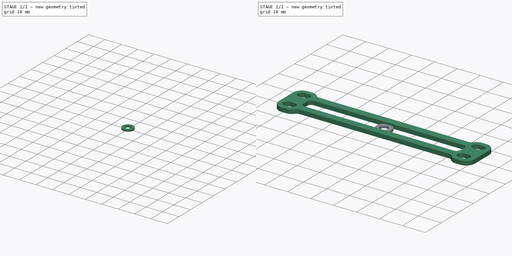
[diagram: build sequence overview — one tinted view per stage of 2, left to right]
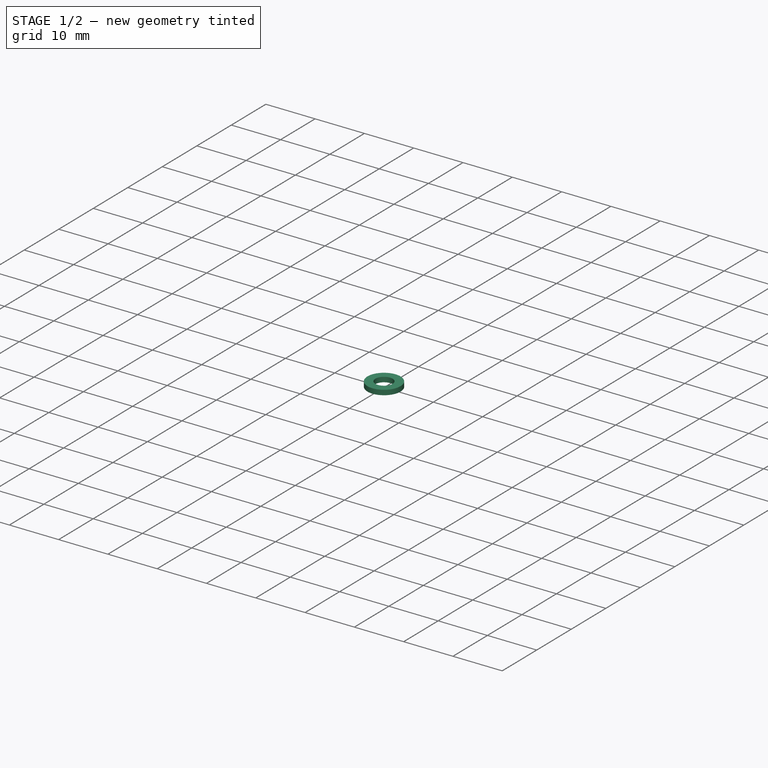
[diagram: stage 1 of 2 — iso view after this stage's code; geometry added in this stage tinted green]
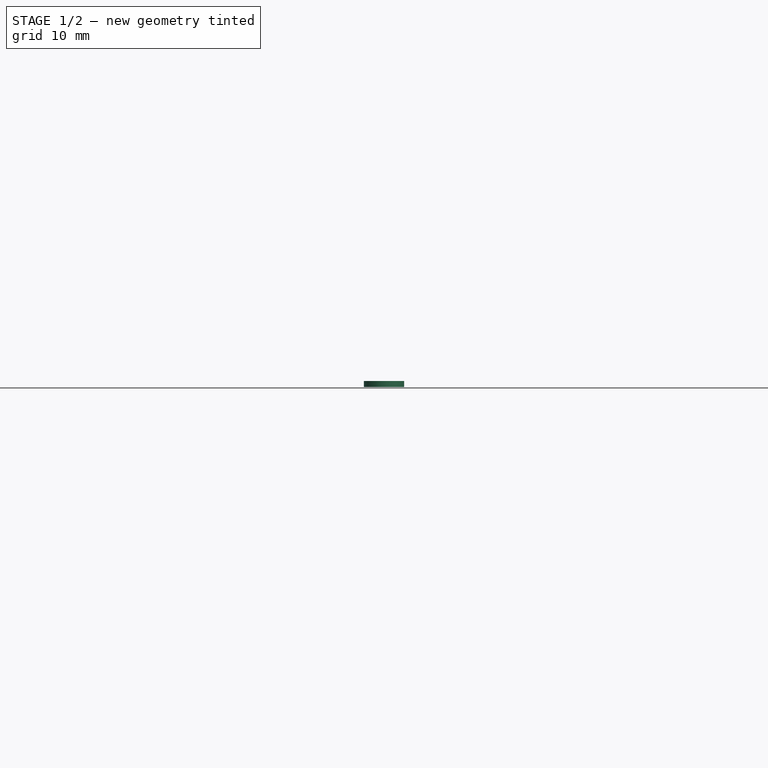
[diagram: stage 1 of 2 — front view after this stage's code; geometry added in this stage tinted green]
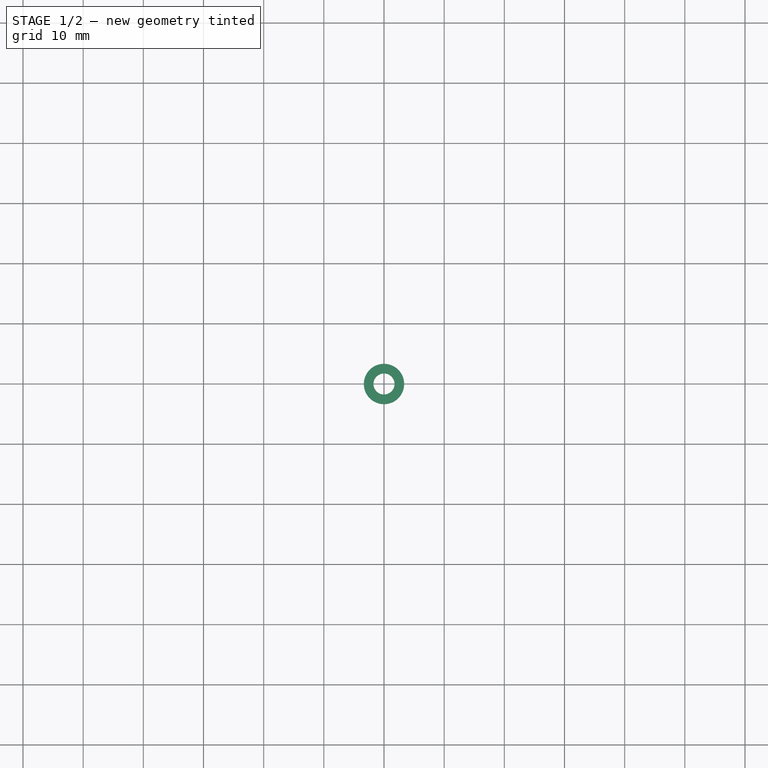
[diagram: stage 1 of 2 — top view after this stage's code; geometry added in this stage tinted green]
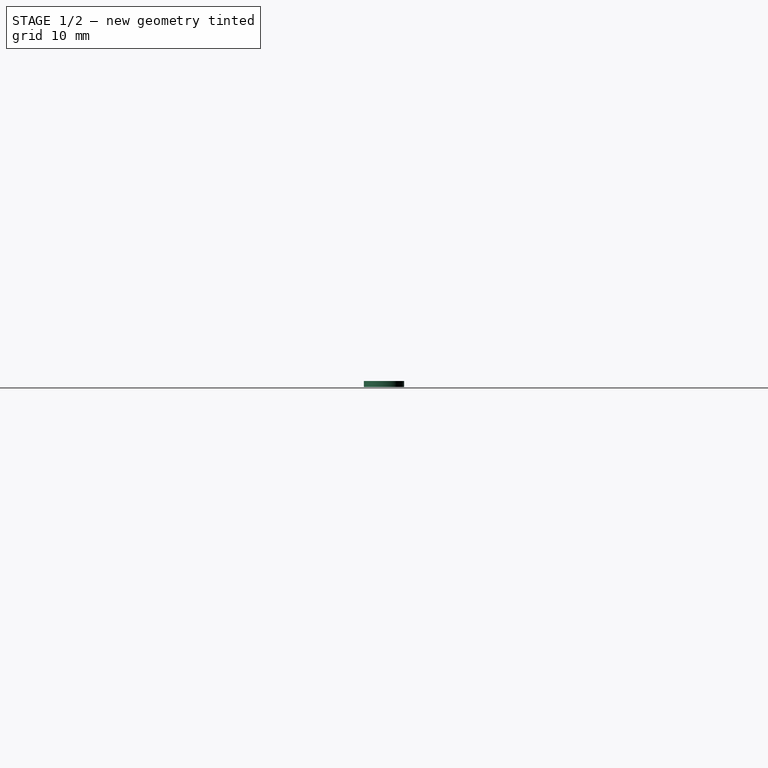
[diagram: stage 1 of 2 — right view after this stage's code; geometry added in this stage tinted green]
FCSTD DOCUMENT  (FreeCAD 0.22R33992 (Git))
Label: GimliHddPlate
License: All rights reserved
LicenseURL: http://en.wikipedia.org/wiki/All_rights_reserved
objects: Sketcher::SketchObject×3, PartDesign::Body×3, PartDesign::Pad×2
note: 10 computed .brp shape members not serialized (recipe doc carries the construction recipe); baked Part::Feature solids carry a one-line shape summary decoded from their .brp

FEATURE [PartDesign::Body] Body001  label="SSDJoiner"
  Group = -> [Sketch001,Pad]
  Origin = -> Origin001
  Tip = -> Pad
FEATURE [Sketcher::SketchObject] Sketch002
  FullyConstrained = true
  MapMode = 5
  Support = -> [XY_Plane002]
  expr: Constraints[3] = .Constraints.R1 + 1.6 mm
  sketch-geometry (2):
    g0: Circle CenterX=0 CenterY=0 CenterZ=0 NormalX=0 NormalY=0 NormalZ=1 AngleXU=0 Radius=1.75
    g1: Circle CenterX=0 CenterY=0 CenterZ=0 NormalX=0 NormalY=0 NormalZ=1 AngleXU=0 Radius=3.35
  constraints (4):
    c: Coincident(g0,g-1)
    c: Radius(g0) = 1.75  'R1'
    c: Coincident(g1,g0)
    c: Radius(g1) = 3.35
FEATURE [PartDesign::Pad] Pad001
  Direction = (0,0,1)
  Length = 1
  Length2 = 10
  Profile = -> Sketch002
  ReferenceAxis = -> Sketch002 [N_Axis]
  Type = 0
FEATURE [PartDesign::Body] Body002  label="Washer"
  Group = -> [Sketch002,Pad001]
  Origin = -> Origin002
  Tip = -> Pad001
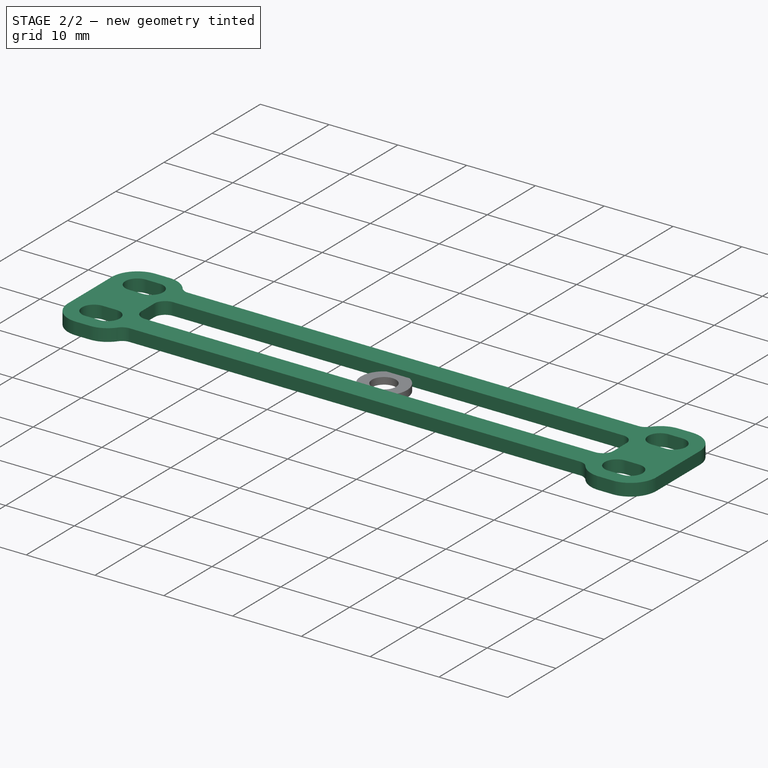
[diagram: stage 2 of 2 — iso view after this stage's code; geometry added in this stage tinted green]
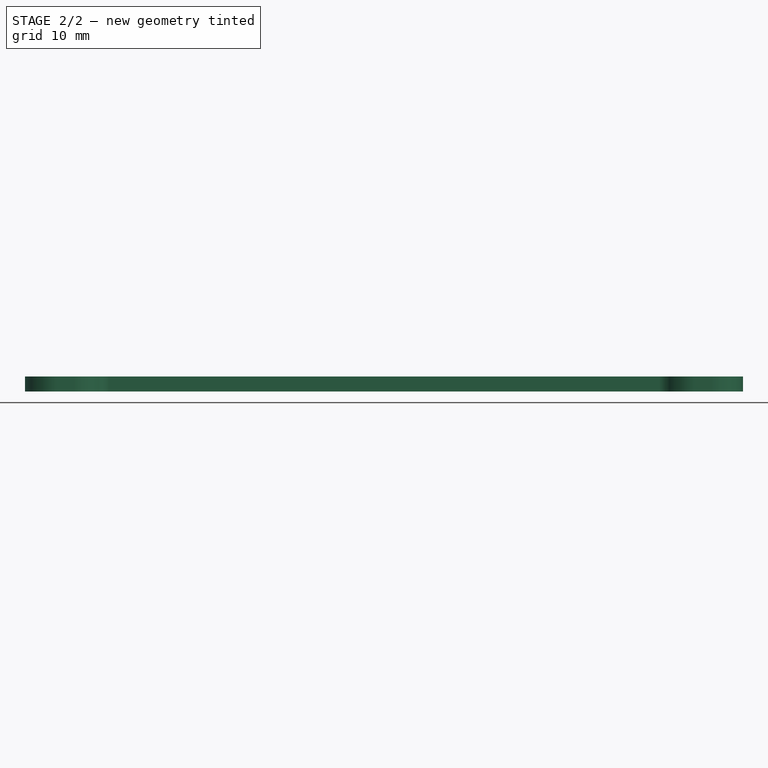
[diagram: stage 2 of 2 — front view after this stage's code; geometry added in this stage tinted green]
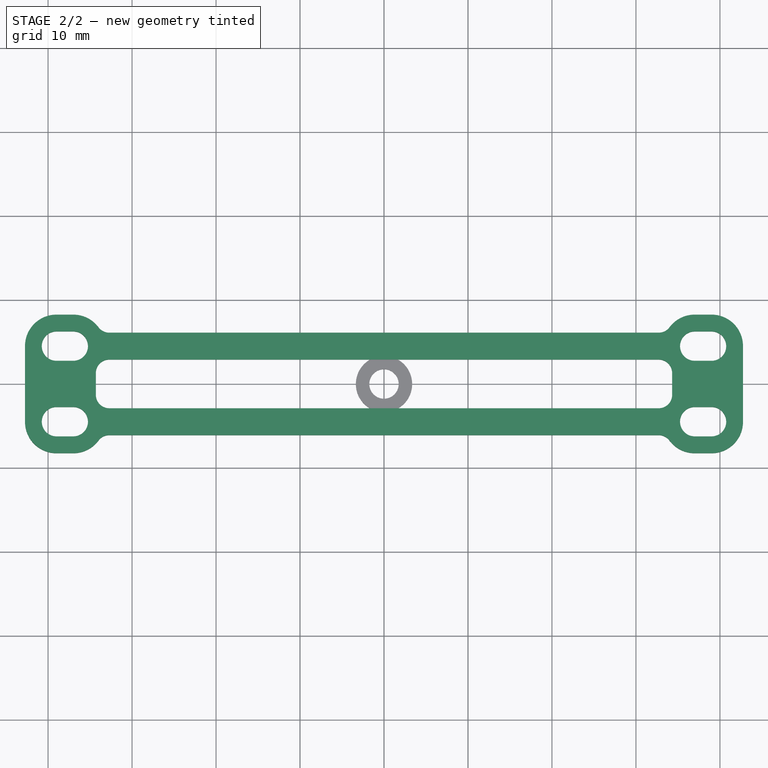
[diagram: stage 2 of 2 — top view after this stage's code; geometry added in this stage tinted green]
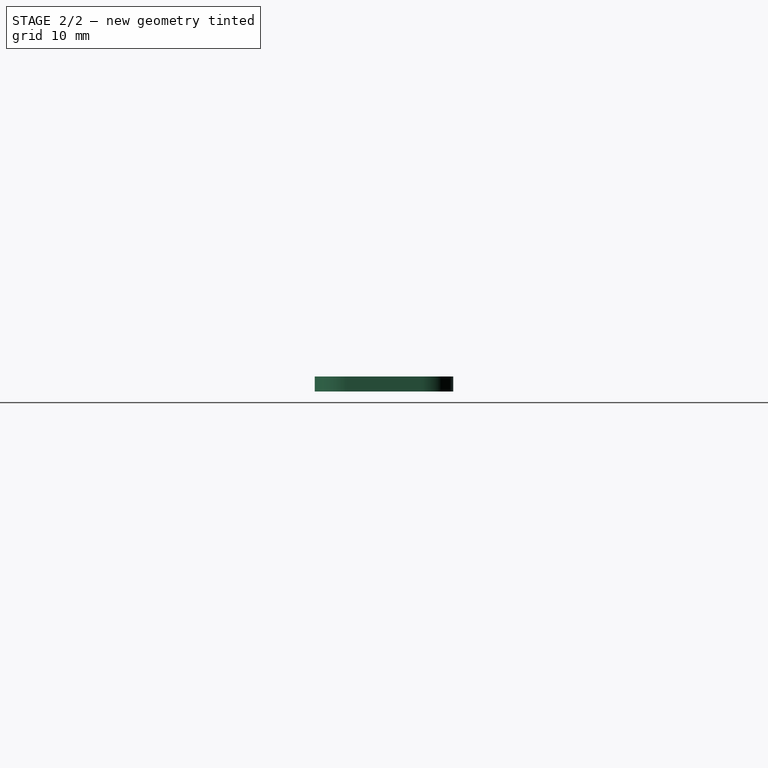
[diagram: stage 2 of 2 — right view after this stage's code; geometry added in this stage tinted green]
FEATURE [Sketcher::SketchObject] Sketch
  FullyConstrained = false
  MapMode = 5
  Support = -> [XY_Plane]
  sketch-geometry (7):
    g0: LineSegment StartX=35.7178 StartY=71.0694 StartZ=0 EndX=172.718 EndY=71.0694 EndZ=0
    g1: LineSegment StartX=172.718 StartY=71.0694 StartZ=0 EndX=172.718 EndY=-54.9306 EndZ=0
    g2: LineSegment StartX=172.718 StartY=-54.9306 StartZ=0 EndX=67.7178 EndY=-54.9306 EndZ=0
    g3: LineSegment StartX=67.7178 StartY=-54.9306 StartZ=0 EndX=67.7178 EndY=43.0694 EndZ=0
    g4: LineSegment StartX=67.7178 StartY=43.0694 StartZ=0 EndX=35.7178 EndY=43.0694 EndZ=0
    g5: LineSegment StartX=35.7178 StartY=43.0694 StartZ=0 EndX=35.7178 EndY=71.0694 EndZ=0
    g6: Circle CenterX=40.9178 CenterY=58.0694 CenterZ=0 NormalX=0 NormalY=0 NormalZ=1 AngleXU=0 Radius=2.2
  constraints (20):
    c: Horizontal(g0)
    c: DistanceX(g0,g0) = 137
    c: Coincident(g1,g0)
    c: Vertical(g1)
    c: DistanceY(g1,g1) = 126
    c: Coincident(g2,g1)
    c: Horizontal(g2)
    c: Coincident(g3,g2)
    c: Vertical(g3)
    c: Coincident(g4,g3)
    c: Horizontal(g4)
    c: Coincident(g5,g4)
    c: Coincident(g5,g0)
    c: Vertical(g5)
    c: DistanceX(g2,g2) = 105
    c: DistanceY(g5,g5) = 28
    c: DistanceX(g4,g4) = 32
    c: DistanceY(g6,g0) = 13
    c: Radius(g6) = 2.2
    c: DistanceX(g0,g6) = 5.2
FEATURE [PartDesign::Body] Body  label="Plate"
  Group = -> [Sketch]
  Origin = -> Origin
FEATURE [Sketcher::SketchObject] Sketch001
  FullyConstrained = true
  MapMode = 5
  Support = -> [XY_Plane001]
  expr: Constraints[91] = .Constraints.Rh + 2 mm
  sketch-geometry (51):
    g0: LineSegment StartX=-38 StartY=4.5 StartZ=0 EndX=38 EndY=4.5 EndZ=0
    g1: LineSegment StartX=38 StartY=4.5 StartZ=0 EndX=38 EndY=-4.5 EndZ=0
    g2: ArcOfCircle CenterX=-32.7125 CenterY=-7.7 CenterZ=0 NormalX=0 NormalY=0 NormalZ=1 AngleXU=0 Radius=1.6 StartAngle=1.5708 EndAngle=2.50043
    g3: ArcOfCircle CenterX=32.7125 CenterY=-7.7 CenterZ=0 NormalX=0 NormalY=0 NormalZ=1 AngleXU=0 Radius=1.6 StartAngle=0.641167 EndAngle=1.5708
    g4: LineSegment StartX=-32.7125 StartY=-6.1 StartZ=0 EndX=32.7125 EndY=-6.1 EndZ=0
    g5: LineSegment StartX=-32.7125 StartY=-2.9 StartZ=0 EndX=32.7125 EndY=-2.9 EndZ=0
    g6: LineSegment StartX=-32.7125 StartY=-2.9 StartZ=0 EndX=-32.7125 EndY=-6.1 EndZ=0
    g7: LineSegment StartX=-42.75 StartY=4.5 StartZ=0 EndX=-42.75 EndY=-4.5 EndZ=0
    g8: LineSegment StartX=-38 StartY=-4.5 StartZ=0 EndX=-38 EndY=4.5 EndZ=0
    g9: LineSegment StartX=38 StartY=-4.5 StartZ=0 EndX=-38 EndY=-4.5 EndZ=0
    g10: ArcOfCircle CenterX=-32.7125 CenterY=-1.3 CenterZ=0 NormalX=0 NormalY=0 NormalZ=1 AngleXU=0 Radius=1.6 StartAngle=3.14159 EndAngle=4.71239
    g11: LineSegment StartX=-32.7125 StartY=6.1 StartZ=0 EndX=32.7125 EndY=6.1 EndZ=0
    g12: LineSegment StartX=-32.7125 StartY=2.9 StartZ=0 EndX=32.7125 EndY=2.9 EndZ=0
    g13: LineSegment StartX=-32.7125 StartY=6.1 StartZ=0 EndX=-32.7125 EndY=2.9 EndZ=0
    g14: ArcOfCircle CenterX=-32.7125 CenterY=7.7 CenterZ=0 NormalX=0 NormalY=0 NormalZ=1 AngleXU=0 Radius=1.6 StartAngle=3.78276 EndAngle=4.71239
    g15: ArcOfCircle CenterX=-32.7125 CenterY=1.3 CenterZ=0 NormalX=0 NormalY=0 NormalZ=1 AngleXU=0 Radius=1.6 StartAngle=1.5708 EndAngle=3.14159
    g16: ArcOfCircle CenterX=32.7125 CenterY=7.7 CenterZ=0 NormalX=0 NormalY=0 NormalZ=1 AngleXU=0 Radius=1.6 StartAngle=4.71239 EndAngle=5.64202
    g17: ArcOfCircle CenterX=32.7125 CenterY=1.3 CenterZ=0 NormalX=0 NormalY=0 NormalZ=1 AngleXU=0 Radius=1.6 StartAngle=0 EndAngle=1.5708
    g18: ArcOfCircle CenterX=32.7125 CenterY=-1.3 CenterZ=0 NormalX=0 NormalY=0 NormalZ=1 AngleXU=0 Radius=1.6 StartAngle=4.71239 EndAngle=6.28319
    g19: LineSegment StartX=34.3125 StartY=1.3 StartZ=0 EndX=34.3125 EndY=-1.3 EndZ=0
    g20: LineSegment StartX=42.75 StartY=4.5 StartZ=0 EndX=42.75 EndY=-4.5 EndZ=0
    g21: LineSegment StartX=-34.3125 StartY=1.3 StartZ=0 EndX=-34.3125 EndY=-1.3 EndZ=0
    g22: LineSegment StartX=32.7125 StartY=6.1 StartZ=0 EndX=32.7125 EndY=2.9 EndZ=0
    g23: ArcOfCircle CenterX=-39 CenterY=-4.5 CenterZ=0 NormalX=0 NormalY=0 NormalZ=1 AngleXU=0 Radius=1.75 StartAngle=1.5708 EndAngle=4.71239
    g24: ArcOfCircle CenterX=-37 CenterY=-4.5 CenterZ=0 NormalX=0 NormalY=0 NormalZ=1 AngleXU=0 Radius=1.75 StartAngle=4.71239 EndAngle=7.85398
    g25: LineSegment StartX=-39 StartY=-6.25 StartZ=0 EndX=-37 EndY=-6.25 EndZ=0
    g26: LineSegment StartX=-37 StartY=-2.75 StartZ=0 EndX=-39 EndY=-2.75 EndZ=0
    g27: ArcOfCircle CenterX=-39 CenterY=4.5 CenterZ=0 NormalX=0 NormalY=0 NormalZ=1 AngleXU=0 Radius=1.75 StartAngle=1.5708 EndAngle=4.71239
    g28: ArcOfCircle CenterX=-37 CenterY=4.5 CenterZ=0 NormalX=0 NormalY=0 NormalZ=1 AngleXU=0 Radius=1.75 StartAngle=4.71239 EndAngle=7.85398
    g29: LineSegment StartX=-39 StartY=2.75 StartZ=0 EndX=-37 EndY=2.75 EndZ=0
    g30: LineSegment StartX=-37 StartY=6.25 StartZ=0 EndX=-39 EndY=6.25 EndZ=0
    g31: ArcOfCircle CenterX=37 CenterY=4.5 CenterZ=0 NormalX=0 NormalY=0 NormalZ=1 AngleXU=0 Radius=1.75 StartAngle=1.5708 EndAngle=4.71239
    g32: ArcOfCircle CenterX=39 CenterY=4.5 CenterZ=0 NormalX=0 NormalY=0 NormalZ=1 AngleXU=0 Radius=1.75 StartAngle=4.71239 EndAngle=7.85398
    g33: LineSegment StartX=37 StartY=2.75 StartZ=0 EndX=39 EndY=2.75 EndZ=0
    g34: LineSegment StartX=39 StartY=6.25 StartZ=0 EndX=37 EndY=6.25 EndZ=0
    g35: ArcOfCircle CenterX=37 CenterY=-4.5 CenterZ=0 NormalX=0 NormalY=0 NormalZ=1 AngleXU=0 Radius=1.75 StartAngle=1.5708 EndAngle=4.71239
    g36: ArcOfCircle CenterX=39 CenterY=-4.5 CenterZ=0 NormalX=0 NormalY=0 NormalZ=1 AngleXU=0 Radius=1.75 StartAngle=4.71239 EndAngle=7.85398
    g37: LineSegment StartX=37 StartY=-6.25 StartZ=0 EndX=39 EndY=-6.25 EndZ=0
    g38: LineSegment StartX=39 StartY=-2.75 StartZ=0 EndX=37 EndY=-2.75 EndZ=0
    g39: ArcOfCircle CenterX=-39 CenterY=-4.5 CenterZ=0 NormalX=0 NormalY=0 NormalZ=1 AngleXU=0 Radius=3.75 StartAngle=3.14159 EndAngle=4.71239
    g40: LineSegment StartX=-39 StartY=-8.25 StartZ=0 EndX=-37 EndY=-8.25 EndZ=0
    g41: ArcOfCircle CenterX=-37 CenterY=-4.5 CenterZ=0 NormalX=0 NormalY=0 NormalZ=1 AngleXU=0 Radius=3.75 StartAngle=4.71239 EndAngle=5.64202
    g42: ArcOfCircle CenterX=-39 CenterY=4.5 CenterZ=0 NormalX=0 NormalY=0 NormalZ=1 AngleXU=0 Radius=3.75 StartAngle=1.5708 EndAngle=3.14159
    g43: LineSegment StartX=-39 StartY=8.25 StartZ=0 EndX=-37 EndY=8.25 EndZ=0
    g44: ArcOfCircle CenterX=-37 CenterY=4.5 CenterZ=0 NormalX=0 NormalY=0 NormalZ=1 AngleXU=0 Radius=3.75 StartAngle=0.641167 EndAngle=1.5708
    g45: ArcOfCircle CenterX=39 CenterY=4.5 CenterZ=0 NormalX=0 NormalY=0 NormalZ=1 AngleXU=0 Radius=3.75 StartAngle=0 EndAngle=1.5708
    g46: ArcOfCircle CenterX=37 CenterY=4.5 CenterZ=0 NormalX=0 NormalY=0 NormalZ=1 AngleXU=0 Radius=3.75 StartAngle=1.5708 EndAngle=2.50043
    g47: LineSegment StartX=37 StartY=8.25 StartZ=0 EndX=39 EndY=8.25 EndZ=0
    g48: ArcOfCircle CenterX=39 CenterY=-4.5 CenterZ=0 NormalX=0 NormalY=0 NormalZ=1 AngleXU=0 Radius=3.75 StartAngle=4.71239 EndAngle=6.28319
    g49: ArcOfCircle CenterX=37 CenterY=-4.5 CenterZ=0 NormalX=0 NormalY=0 NormalZ=1 AngleXU=0 Radius=3.75 StartAngle=3.78276 EndAngle=4.71239
    g50: LineSegment StartX=37 StartY=-8.25 StartZ=0 EndX=39 EndY=-8.25 EndZ=0
  constraints (115):
    c: Coincident(g0,g1)
    c: Coincident(g1,g9)
    c: Coincident(g8,g0)
    c: Horizontal(g0)
    c: Vertical(g1)
    c: DistanceX(g0,g0) = 76
    c: Symmetric(g0,g1,g-1)
    c: Horizontal(g4)
    c: Tangent(g4,g3) = 1.5708
    c: Tangent(g2,g4) = 1.5708
    c: Equal(g2,g3)
    c: Radius(g2) = 1.6
    c: Horizontal(g5)
    c: DistanceY(g2,g5) = 3.2
    c: Equal(g4,g5)
    c: Coincident(g6,g5)
    c: Coincident(g6,g2)
    c: Vertical(g7)
    c: Horizontal(g9)
    c: Tangent(g10,g5) = -1.5708
    c: Horizontal(g11)
    c: Horizontal(g12)
    c: Symmetric(g5,g2,g9)
    c: Coincident(g13,g11)
    c: Coincident(g13,g12)
    c: Symmetric(g11,g12,g0)
    c: Tangent(g14,g11) = -1.5708
    c: Tangent(g15,g12) = 1.5708
    c: Equal(g14,g16)
    c: Tangent(g11,g16) = -1.5708
    c: Tangent(g12,g17) = 1.5708
    c: Equal(g15,g17)
    c: Tangent(g5,g18) = -1.5708
    c: Vertical(g19)
    c: Equal(g6,g13)
    c: Vertical(g21)
    c: Tangent(g15,g21) = -1.5708
    c: Tangent(g10,g21) = -1.5708
    c: Equal(g2,g10)
    c: Equal(g10,g15)
    c: Tangent(g19,g17) = 1.5708
    c: Tangent(g18,g19) = 1.5708
    c: Coincident(g22,g11)
    c: Coincident(g22,g12)
    c: Vertical(g22)
    c: DistanceY(g8,g8) = 9
    c: Tangent(g23,g25) = -1.5708
    c: Tangent(g25,g24) = -1.5708
    c: Tangent(g24,g26) = -1.5708
    c: Tangent(g26,g23) = -1.5708
    c: Equal(g23,g24)
    c: PointOnObject(g24,g9)
    c: DistanceX(g25,g25) = 2
    c: Tangent(g27,g29) = -1.5708
    c: Tangent(g29,g28) = -1.5708
    c: Tangent(g28,g30) = -1.5708
    c: Tangent(g30,g27) = -1.5708
    c: Equal(g27,g28)
    c: PointOnObject(g28,g0)
    c: Equal(g26,g29)
    c: Radius(g28) = 1.75  'Rh'
    c: Equal(g24,g28)
    c: Tangent(g31,g33) = -1.5708
    c: Tangent(g33,g32) = -1.5708
    c: Tangent(g32,g34) = -1.5708
    c: Tangent(g34,g31) = -1.5708
    c: Equal(g31,g32)
    c: PointOnObject(g31,g0)
    c: Tangent(g35,g37) = -1.5708
    c: Tangent(g37,g36) = -1.5708
    c: Tangent(g36,g38) = -1.5708
    c: Tangent(g38,g35) = -1.5708
    c: Equal(g35,g36)
    c: PointOnObject(g35,g9)
    c: Equal(g30,g34)
    c: Equal(g33,g38)
    c: Equal(g24,g35)
    c: Equal(g35,g31)
    c: Coincident(g39,g23)
    c: Tangent(g7,g39) = -1.5708
    c: Horizontal(g40)
    c: Tangent(g39,g40) = -1.5708
    c: Coincident(g41,g24)
    c: Tangent(g2,g41) = 1.5708
    c: Tangent(g40,g41) = -1.5708
    c: Coincident(g42,g27)
    c: Tangent(g7,g42) = -1.5708
    c: Horizontal(g43)
    c: Coincident(g44,g28)
    c: Tangent(g43,g44) = 1.5708
    c: Tangent(g14,g44) = 1.5708
    c: Radius(g42) = 3.75
    c: Equal(g42,g39)
    c: Symmetric(g23,g24,g9)
    c: Symmetric(g27,g28,g0)
    c: Coincident(g8,g9)
    c: Tangent(g42,g43) = 1.5708
    c: Coincident(g45,g32)
    c: Coincident(g46,g31)
    c: Horizontal(g47)
    c: Tangent(g16,g46) = 1.5708
    c: Tangent(g46,g47) = 1.5708
    c: Tangent(g45,g47) = 1.5708
    c: Tangent(g20,g45) = 1.5708
    c: Coincident(g48,g36)
    c: Coincident(g49,g35)
    c: Horizontal(g50)
    c: Tangent(g3,g49) = 1.5708
    c: Tangent(g49,g50) = -1.5708
    c: Tangent(g48,g50) = -1.5708
    c: Tangent(g20,g48) = 1.5708
    c: Symmetric(g31,g32,g0)
    c: Symmetric(g35,g36,g1)
    c: Equal(g44,g46)
    c: Equal(g45,g48)
FEATURE [PartDesign::Pad] Pad
  Direction = (0,0,1)
  Length = 1.8
  Length2 = 10
  Profile = -> Sketch001
  ReferenceAxis = -> Sketch001 [N_Axis]
  Type = 0
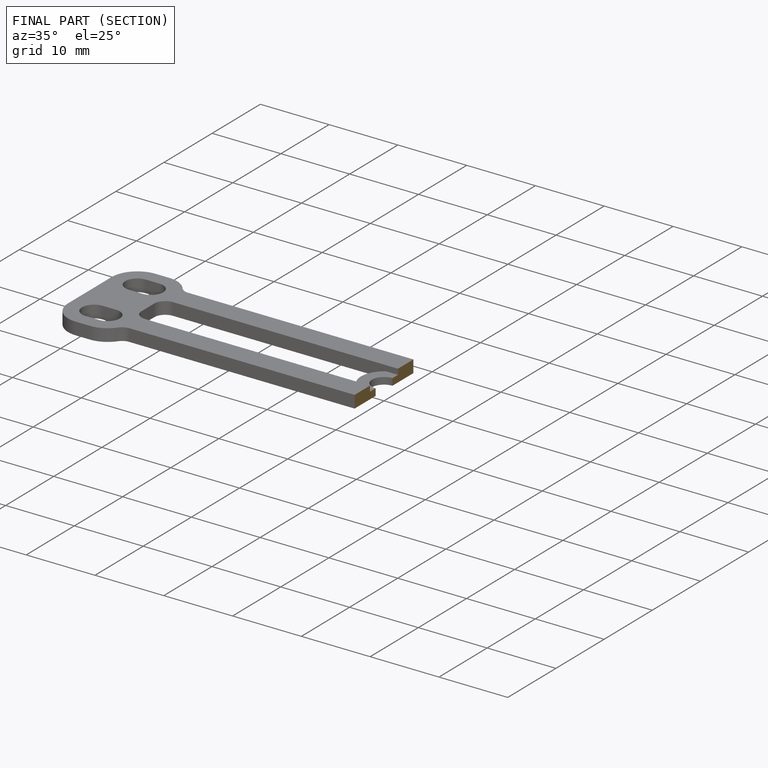
[diagram: finished part — half-section view (interior)]
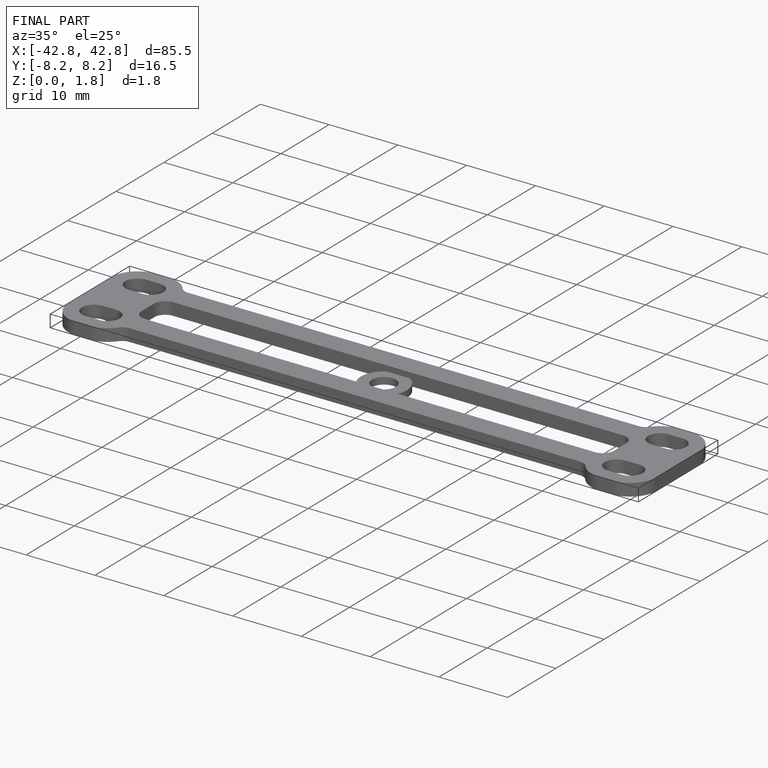
[diagram: finished part — iso view with bounding-box wireframe]
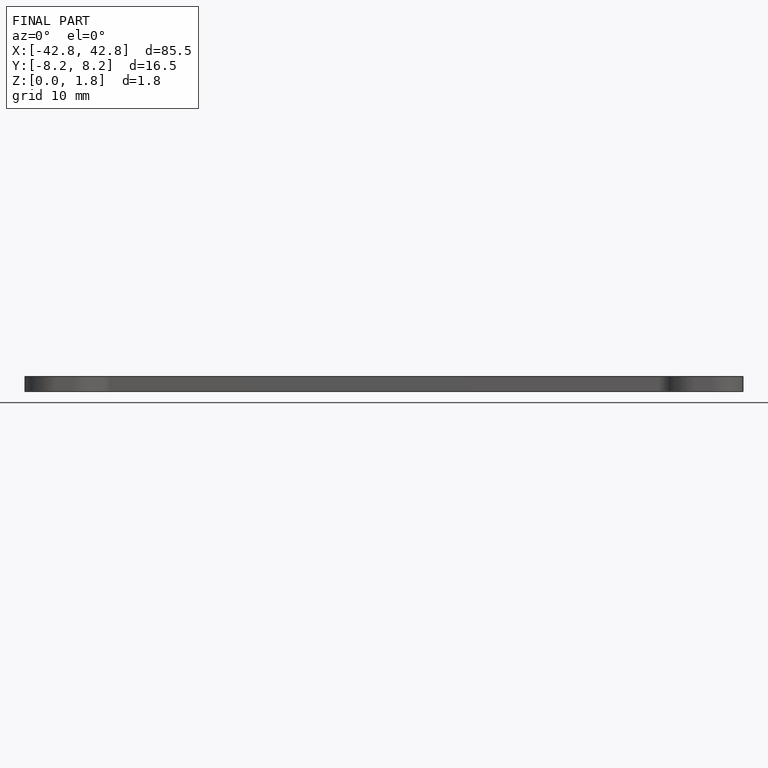
[diagram: finished part — front view with bounding-box wireframe]
